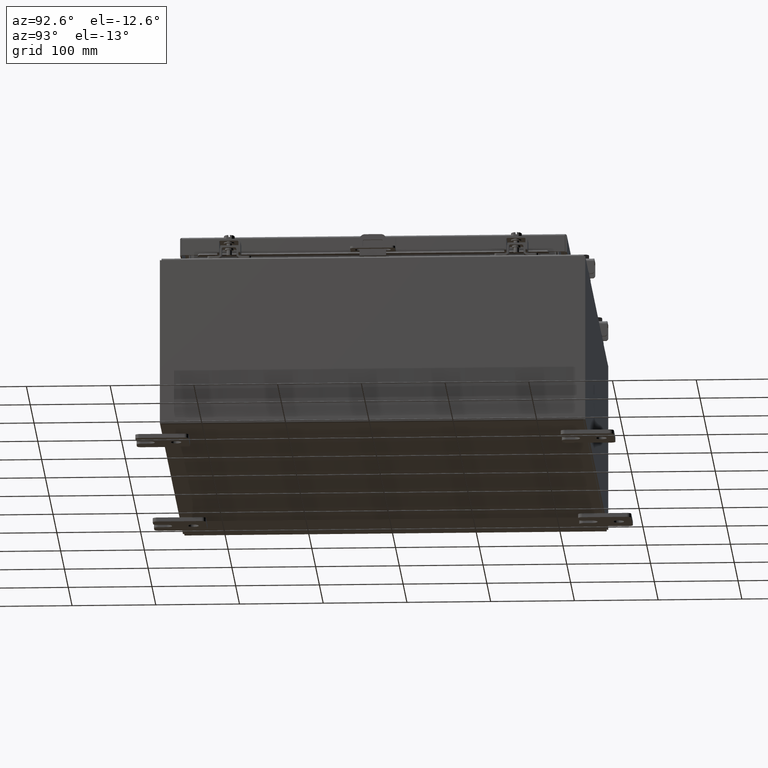
[diagram: clean part render]
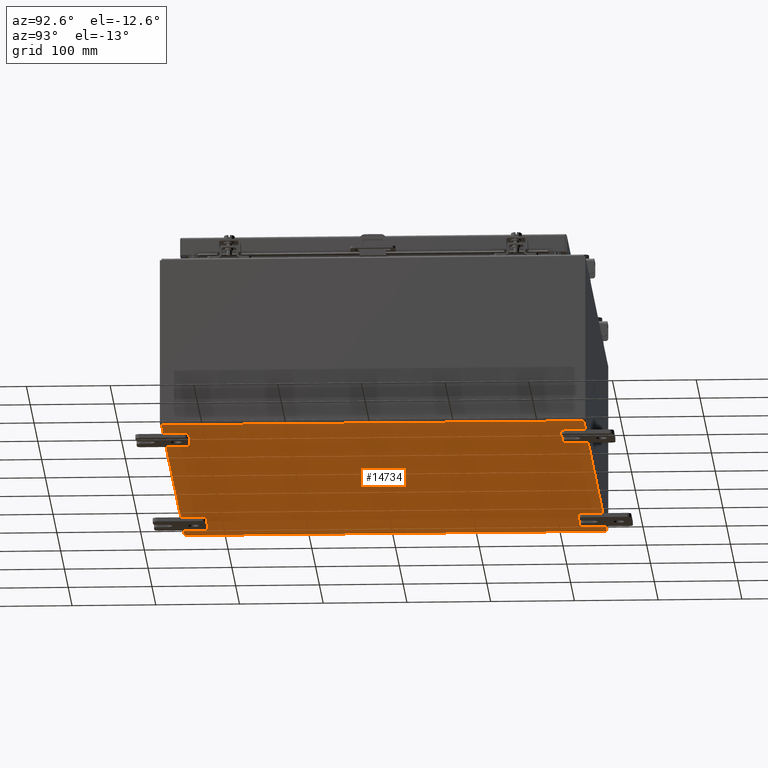
[diagram: same view with one face highlighted and labeled with its STEP entity id]
A machine part, auxiliary view. The second image highlights one B-rep face of the part: STEP entity #14734.
In plain terms, the highlighted planar face has unit normal (0, 0, -1).
Its self-contained STEP definition (entity closure, byte-faithful):
#216 = CARTESIAN_POINT ( 'NONE',  ( 11.91229999999999800, 9.925299999999996500, -0.07469999999999994700 ) ) ;
#1012 = DIRECTION ( 'NONE',  ( -0.0000000000000000000, 1.000000000000000000, -0.0000000000000000000 ) ) ;
#1709 = DIRECTION ( 'NONE',  ( -1.000000000000000000, 0.0000000000000000000, -0.0000000000000000000 ) ) ;
#2141 = VECTOR ( 'NONE', #11234, 39.37007874015748100 ) ;
#2560 = LINE ( 'NONE', #25968, #7863 ) ;
#3437 = LINE ( 'NONE', #15913, #14796 ) ;
#3662 = ORIENTED_EDGE ( 'NONE', *, *, #11005, .F. ) ;
#3893 = CARTESIAN_POINT ( 'NONE',  ( 0.0000000000000000000, 0.0000000000000000000, -0.07470000000000000300 ) ) ;
#6124 = CARTESIAN_POINT ( 'NONE',  ( -11.91230000000000400, -9.925300000000000000, -0.07469999999999994700 ) ) ;
#6192 = FACE_OUTER_BOUND ( 'NONE', #21184, .T. ) ;
#7011 = EDGE_CURVE ( 'NONE', #18492, #14445, #2560, .T. ) ;
#7561 = CARTESIAN_POINT ( 'NONE',  ( 11.91229999999998900, -9.925300000000000000, -0.07470000000000000300 ) ) ;
#7863 = VECTOR ( 'NONE', #1012, 39.37007874015748100 ) ;
#8146 = LINE ( 'NONE', #15723, #2141 ) ;
#9125 = ORIENTED_EDGE ( 'NONE', *, *, #25264, .T. ) ;
#9644 = CARTESIAN_POINT ( 'NONE',  ( -11.91230000000000400, 9.925300000000000000, -0.07470000000000000300 ) ) ;
#9799 = LINE ( 'NONE', #13366, #27281 ) ;
#11005 = EDGE_CURVE ( 'NONE', #18492, #14502, #9799, .T. ) ;
#11234 = DIRECTION ( 'NONE',  ( -0.0000000000000000000, -1.000000000000000000, -0.0000000000000000000 ) ) ;
#13366 = CARTESIAN_POINT ( 'NONE',  ( -12.00000000000000400, -9.925300000000000000, -0.07470000000000000300 ) ) ;
#14445 = VERTEX_POINT ( 'NONE', #9644 ) ;
#14502 = VERTEX_POINT ( 'NONE', #7561 ) ;
#14734 = ADVANCED_FACE ( 'NONE', ( #6192 ), #24366, .T. ) ;
#14796 = VECTOR ( 'NONE', #27383, 39.37007874015748100 ) ;
#15305 = DIRECTION ( 'NONE',  ( 0.0000000000000000000, 0.0000000000000000000, -1.000000000000000000 ) ) ;
#15723 = CARTESIAN_POINT ( 'NONE',  ( 11.91229999999999800, 9.925300000000000000, -0.07469999999999994700 ) ) ;
#15913 = CARTESIAN_POINT ( 'NONE',  ( -12.00000000000000400, 9.925300000000000000, -0.07470000000000000300 ) ) ;
#16569 = ORIENTED_EDGE ( 'NONE', *, *, #7011, .T. ) ;
#18492 = VERTEX_POINT ( 'NONE', #6124 ) ;
#20196 = EDGE_CURVE ( 'NONE', #24208, #14445, #3437, .T. ) ;
#21184 = EDGE_LOOP ( 'NONE', ( #3662, #16569, #26589, #9125 ) ) ;
#24208 = VERTEX_POINT ( 'NONE', #216 ) ;
#24366 = PLANE ( 'NONE',  #28878 ) ;
#25264 = EDGE_CURVE ( 'NONE', #24208, #14502, #8146, .T. ) ;
#25968 = CARTESIAN_POINT ( 'NONE',  ( -11.91230000000000400, -9.925300000000000000, -0.07469999999999994700 ) ) ;
#26589 = ORIENTED_EDGE ( 'NONE', *, *, #20196, .F. ) ;
#27033 = DIRECTION ( 'NONE',  ( 1.000000000000000000, 0.0000000000000000000, 0.0000000000000000000 ) ) ;
#27281 = VECTOR ( 'NONE', #27033, 39.37007874015748100 ) ;
#27383 = DIRECTION ( 'NONE',  ( -1.000000000000000000, -0.0000000000000000000, -0.0000000000000000000 ) ) ;
#28878 = AXIS2_PLACEMENT_3D ( 'NONE', #3893, #15305, #1709 ) ;